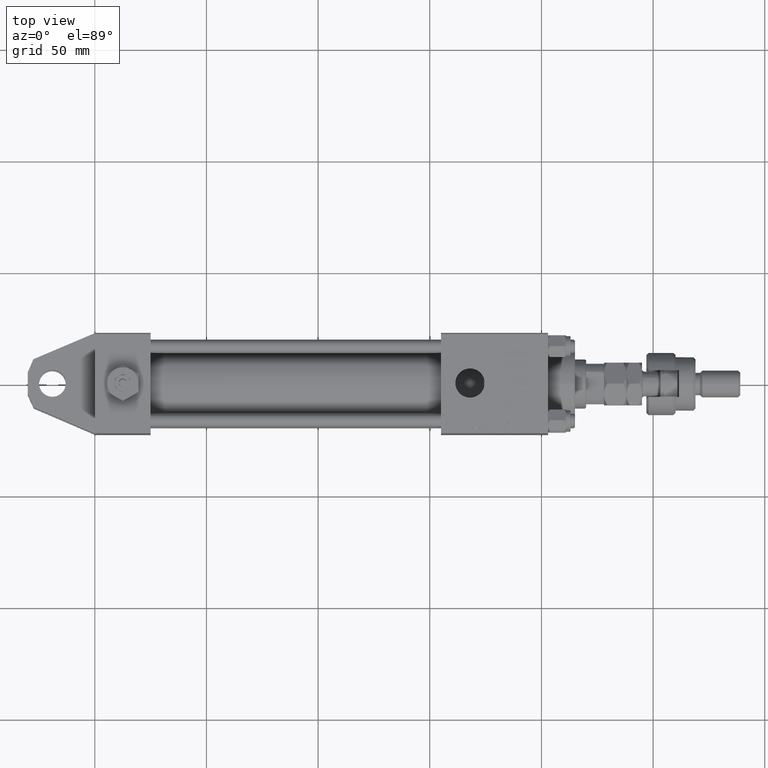
[diagram: clean part render]
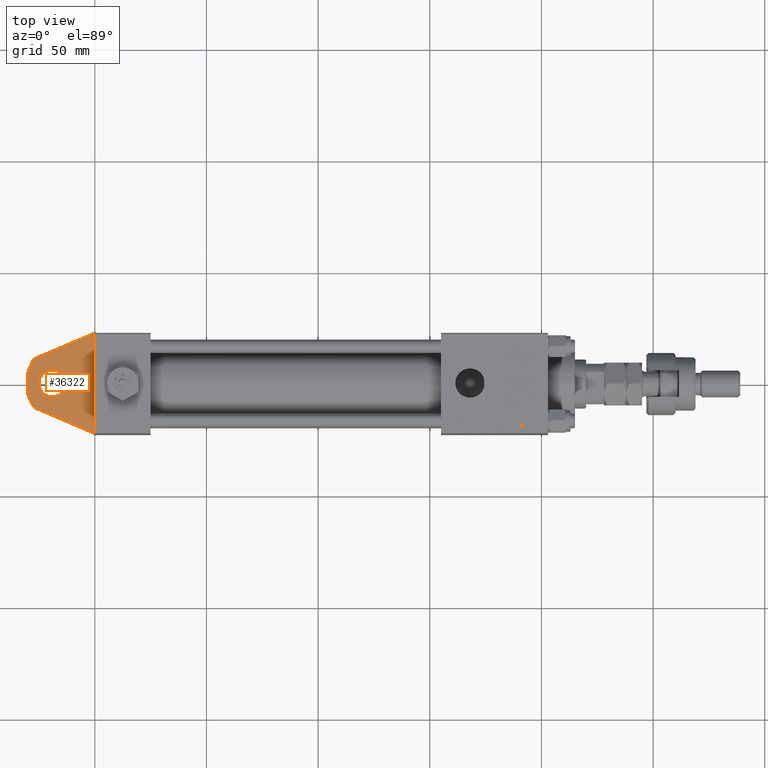
[diagram: same view with one face highlighted and labeled with its STEP entity id]
A machine part, top view. The second image highlights one B-rep face of the part: STEP entity #36322.
In plain terms, the highlighted planar face has unit normal (0, 0, 1).
Its self-contained STEP definition (entity closure, byte-faithful):
#564 = VERTEX_POINT ( 'NONE', #22354 ) ;
#845 = VERTEX_POINT ( 'NONE', #7449 ) ;
#1475 = CARTESIAN_POINT ( 'NONE',  ( 0.000000000000000000, -16.00000000000000000, 22.50000000000000000 ) ) ;
#1795 = CARTESIAN_POINT ( 'NONE',  ( -30.00000000000000000, -16.00000000000000000, 4.999999999999996447 ) ) ;
#1992 = EDGE_CURVE ( 'NONE', #36446, #33229, #32810, .T. ) ;
#2317 = VECTOR ( 'NONE', #47285, 1000.000000000000000 ) ;
#3014 = AXIS2_PLACEMENT_3D ( 'NONE', #17556, #18367, #35169 ) ;
#3157 = DIRECTION ( 'NONE',  ( 0.000000000000000000, 0.000000000000000000, 1.000000000000000000 ) ) ;
#3771 = EDGE_LOOP ( 'NONE', ( #20063, #9285 ) ) ;
#4883 = CARTESIAN_POINT ( 'NONE',  ( -30.00000000000000000, -16.00000000000000000, 4.999999999999996447 ) ) ;
#6104 = EDGE_CURVE ( 'NONE', #24149, #17638, #26862, .T. ) ;
#6653 = CARTESIAN_POINT ( 'NONE',  ( 0.000000000000000000, -16.00000000000000000, -22.50000000000000711 ) ) ;
#7449 = CARTESIAN_POINT ( 'NONE',  ( -27.31637403794659136, -16.00000000000000000, -10.75505444768274543 ) ) ;
#8710 = EDGE_LOOP ( 'NONE', ( #17995, #50297, #46627, #47828, #14260, #42873 ) ) ;
#8794 = DIRECTION ( 'NONE',  ( 0.000000000000000000, 0.000000000000000000, 1.000000000000000000 ) ) ;
#9145 = EDGE_CURVE ( 'NONE', #33229, #36446, #33091, .T. ) ;
#9285 = ORIENTED_EDGE ( 'NONE', *, *, #1992, .T. ) ;
#9471 = CARTESIAN_POINT ( 'NONE',  ( -27.49177119113045720, -16.00000000000000000, 10.83363422253716735 ) ) ;
#9564 = DIRECTION ( 'NONE',  ( -0.4226182617406942232, 0.000000000000000000, 0.9063077870366523792 ) ) ;
#10390 = LINE ( 'NONE', #43181, #22942 ) ;
#14135 = CARTESIAN_POINT ( 'NONE',  ( -19.00000000000000000, -16.00000000000000000, -6.000000000000004441 ) ) ;
#14260 = ORIENTED_EDGE ( 'NONE', *, *, #6104, .F. ) ;
#14409 = PLANE ( 'NONE',  #16492 ) ;
#15050 = LINE ( 'NONE', #30751, #23496 ) ;
#16492 = AXIS2_PLACEMENT_3D ( 'NONE', #23495, #22675, #44716 ) ;
#17371 = EDGE_CURVE ( 'NONE', #20619, #24149, #29638, .T. ) ;
#17556 = CARTESIAN_POINT ( 'NONE',  ( -19.00000000000000000, -16.00000000000000000, -3.469446951953614189E-15 ) ) ;
#17638 = VERTEX_POINT ( 'NONE', #6653 ) ;
#17790 = LINE ( 'NONE', #1795, #2317 ) ;
#17995 = ORIENTED_EDGE ( 'NONE', *, *, #37268, .F. ) ;
#18367 = DIRECTION ( 'NONE',  ( -0.000000000000000000, 1.000000000000000000, -0.000000000000000000 ) ) ;
#20063 = ORIENTED_EDGE ( 'NONE', *, *, #9145, .T. ) ;
#20619 = VERTEX_POINT ( 'NONE', #9471 ) ;
#22146 = EDGE_CURVE ( 'NONE', #845, #564, #10390, .T. ) ;
#22354 = CARTESIAN_POINT ( 'NONE',  ( -30.00000000000000000, -16.00000000000000000, -5.000000000000003553 ) ) ;
#22559 = LINE ( 'NONE', #46822, #47522 ) ;
#22675 = DIRECTION ( 'NONE',  ( 0.000000000000000000, -1.000000000000000000, 0.000000000000000000 ) ) ;
#22942 = VECTOR ( 'NONE', #9564, 1000.000000000000000 ) ;
#23219 = FACE_BOUND ( 'NONE', #3771, .T. ) ;
#23495 = CARTESIAN_POINT ( 'NONE',  ( 0.000000000000000000, -16.00000000000000000, 0.000000000000000000 ) ) ;
#23496 = VECTOR ( 'NONE', #31843, 1000.000000000000227 ) ;
#24149 = VERTEX_POINT ( 'NONE', #31650 ) ;
#25202 = DIRECTION ( 'NONE',  ( -0.000000000000000000, 1.000000000000000000, -0.000000000000000000 ) ) ;
#26862 = LINE ( 'NONE', #1475, #32074 ) ;
#29638 = LINE ( 'NONE', #50865, #43877 ) ;
#30751 = CARTESIAN_POINT ( 'NONE',  ( -27.31637403794659136, -16.00000000000000000, -10.75505444768274543 ) ) ;
#31128 = CARTESIAN_POINT ( 'NONE',  ( -19.00000000000000000, -16.00000000000000000, 5.999999999999997335 ) ) ;
#31650 = CARTESIAN_POINT ( 'NONE',  ( 0.000000000000000000, -15.99999999999999289, 22.50000000000000000 ) ) ;
#31843 = DIRECTION ( 'NONE',  ( -0.9186825547302631678, 0.000000000000000000, 0.3949966628141013958 ) ) ;
#32074 = VECTOR ( 'NONE', #35644, 1000.000000000000000 ) ;
#32810 = CIRCLE ( 'NONE', #3014, 6.000000000000000888 ) ;
#33091 = CIRCLE ( 'NONE', #40149, 6.000000000000000888 ) ;
#33229 = VERTEX_POINT ( 'NONE', #31128 ) ;
#34299 = DIRECTION ( 'NONE',  ( 0.9205433724492674274, 0.000000000000000000, 0.3906403709804319724 ) ) ;
#35169 = DIRECTION ( 'NONE',  ( 0.000000000000000000, 0.000000000000000000, 1.000000000000000000 ) ) ;
#35644 = DIRECTION ( 'NONE',  ( 0.000000000000000000, 0.000000000000000000, -1.000000000000000000 ) ) ;
#36322 = ADVANCED_FACE ( 'NONE', ( #23219, #44161 ), #14409, .T. ) ;
#36446 = VERTEX_POINT ( 'NONE', #14135 ) ;
#36782 = CARTESIAN_POINT ( 'NONE',  ( -19.00000000000000000, -16.00000000000000000, -3.469446951953614189E-15 ) ) ;
#37268 = EDGE_CURVE ( 'NONE', #41639, #20619, #17790, .T. ) ;
#38568 = EDGE_CURVE ( 'NONE', #17638, #845, #15050, .T. ) ;
#40149 = AXIS2_PLACEMENT_3D ( 'NONE', #36782, #25202, #3157 ) ;
#41639 = VERTEX_POINT ( 'NONE', #4883 ) ;
#42873 = ORIENTED_EDGE ( 'NONE', *, *, #17371, .F. ) ;
#43181 = CARTESIAN_POINT ( 'NONE',  ( -30.00000000000000000, -16.00000000000000000, -5.000000000000003553 ) ) ;
#43877 = VECTOR ( 'NONE', #34299, 999.9999999999998863 ) ;
#44161 = FACE_OUTER_BOUND ( 'NONE', #8710, .T. ) ;
#44716 = DIRECTION ( 'NONE',  ( 0.000000000000000000, 0.000000000000000000, 1.000000000000000000 ) ) ;
#46627 = ORIENTED_EDGE ( 'NONE', *, *, #22146, .F. ) ;
#46822 = CARTESIAN_POINT ( 'NONE',  ( -30.00000000000000000, -16.00000000000000000, -5.000000000000003553 ) ) ;
#47040 = EDGE_CURVE ( 'NONE', #564, #41639, #22559, .T. ) ;
#47285 = DIRECTION ( 'NONE',  ( 0.3949966628141011737, 0.000000000000000000, 0.9186825547302632788 ) ) ;
#47522 = VECTOR ( 'NONE', #8794, 1000.000000000000000 ) ;
#47828 = ORIENTED_EDGE ( 'NONE', *, *, #38568, .F. ) ;
#50297 = ORIENTED_EDGE ( 'NONE', *, *, #47040, .F. ) ;
#50865 = CARTESIAN_POINT ( 'NONE',  ( -27.49177119113045720, -16.00000000000000000, 10.83363422253716735 ) ) ;